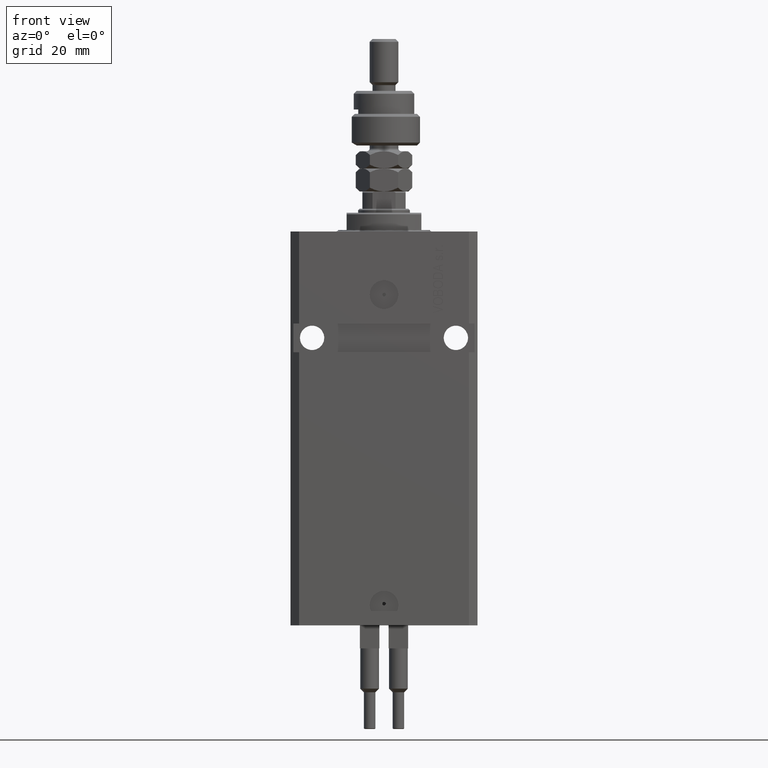
[diagram: clean part render]
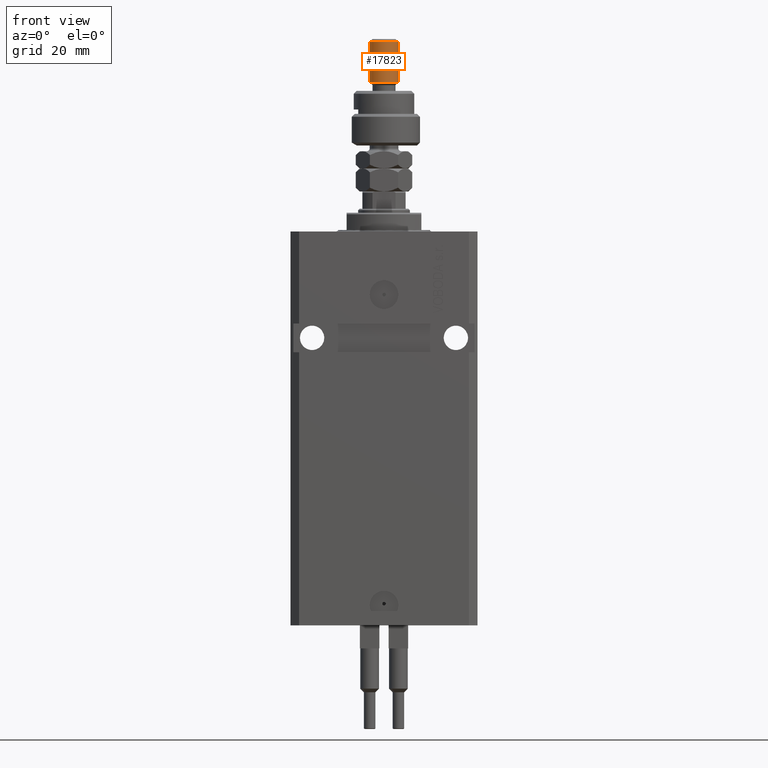
[diagram: same view with one face highlighted and labeled with its STEP entity id]
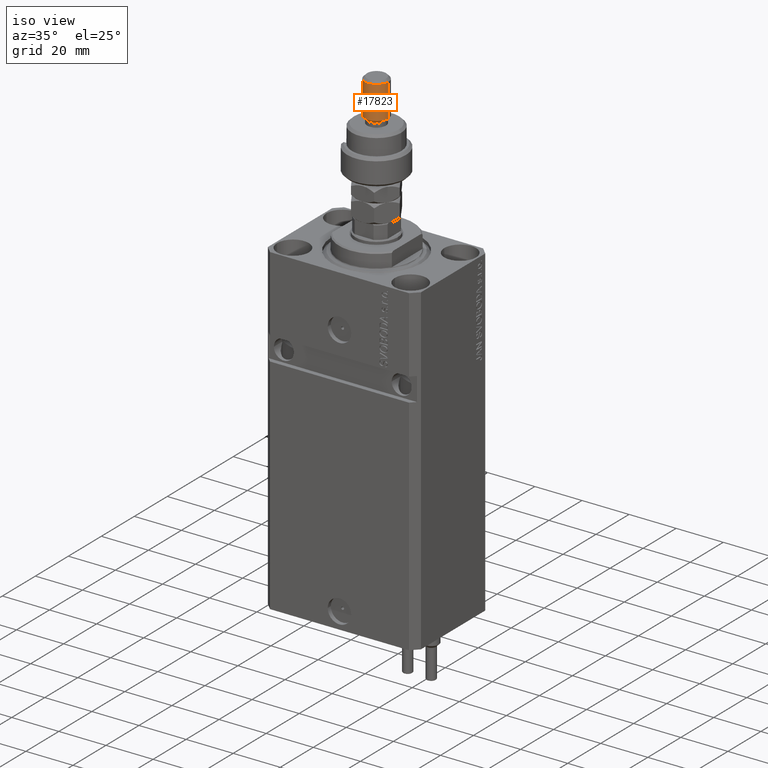
[diagram: same view with one face highlighted and labeled with its STEP entity id]
A machine part, front view. The second image highlights one B-rep face of the part: STEP entity #17823.
A second angle (iso view) of the same face is appended — the face is thin or edge-on in the first view.
In plain terms, the highlighted cylindrical surface (edge-blend (fillet) strip) has radius 5 mm, axis along (-0, -0, -1).
Its self-contained STEP definition (entity closure, byte-faithful):
#3998 = VERTEX_POINT ( 'NONE', #31909 ) ;
#7361 = AXIS2_PLACEMENT_3D ( 'NONE', #15082, #34890, #30777 ) ;
#7624 = CARTESIAN_POINT ( 'NONE',  ( -5.000000000000000888, 0.000000000000000000, 37.00000000000000000 ) ) ;
#7626 = VERTEX_POINT ( 'NONE', #18257 ) ;
#10324 = VECTOR ( 'NONE', #46520, 1000.000000000000000 ) ;
#11212 = LINE ( 'NONE', #7624, #29098 ) ;
#11320 = CARTESIAN_POINT ( 'NONE',  ( 5.000000000000000888, 6.123233995736767268E-16, 37.00000000000000000 ) ) ;
#13411 = FACE_OUTER_BOUND ( 'NONE', #21898, .T. ) ;
#13663 = CARTESIAN_POINT ( 'NONE',  ( 0.000000000000000000, 0.000000000000000000, 37.00000000000000000 ) ) ;
#13670 = ORIENTED_EDGE ( 'NONE', *, *, #37474, .F. ) ;
#15082 = CARTESIAN_POINT ( 'NONE',  ( 0.000000000000000000, 0.000000000000000000, 36.00000000000000711 ) ) ;
#15244 = AXIS2_PLACEMENT_3D ( 'NONE', #20893, #25017, #40442 ) ;
#17823 = ADVANCED_FACE ( 'NONE', ( #13411 ), #28615, .T. ) ;
#18257 = CARTESIAN_POINT ( 'NONE',  ( 5.000000000000000888, 6.123233995736767268E-16, 21.99999999999999289 ) ) ;
#18599 = EDGE_CURVE ( 'NONE', #34035, #3998, #11212, .T. ) ;
#20893 = CARTESIAN_POINT ( 'NONE',  ( 0.000000000000000000, 0.000000000000000000, 21.99999999999999289 ) ) ;
#21005 = CIRCLE ( 'NONE', #15244, 5.000000000000000888 ) ;
#21898 = EDGE_LOOP ( 'NONE', ( #13670, #37303, #24207, #49142 ) ) ;
#24065 = CARTESIAN_POINT ( 'NONE',  ( 5.000000000000000888, 6.123233995736767268E-16, 36.00000000000000711 ) ) ;
#24207 = ORIENTED_EDGE ( 'NONE', *, *, #18599, .T. ) ;
#25017 = DIRECTION ( 'NONE',  ( -0.000000000000000000, -0.000000000000000000, 1.000000000000000000 ) ) ;
#25929 = EDGE_CURVE ( 'NONE', #3998, #7626, #21005, .T. ) ;
#27009 = LINE ( 'NONE', #11320, #10324 ) ;
#28615 = CYLINDRICAL_SURFACE ( 'NONE', #31539, 5.000000000000000888 ) ;
#29098 = VECTOR ( 'NONE', #50783, 1000.000000000000000 ) ;
#30777 = DIRECTION ( 'NONE',  ( 1.000000000000000000, 0.000000000000000000, 0.000000000000000000 ) ) ;
#31539 = AXIS2_PLACEMENT_3D ( 'NONE', #13663, #44277, #36568 ) ;
#31909 = CARTESIAN_POINT ( 'NONE',  ( -5.000000000000000888, 0.000000000000000000, 21.99999999999999289 ) ) ;
#34035 = VERTEX_POINT ( 'NONE', #40479 ) ;
#34890 = DIRECTION ( 'NONE',  ( 0.000000000000000000, 0.000000000000000000, -1.000000000000000000 ) ) ;
#35020 = VERTEX_POINT ( 'NONE', #24065 ) ;
#36568 = DIRECTION ( 'NONE',  ( -1.000000000000000000, 0.000000000000000000, 0.000000000000000000 ) ) ;
#37303 = ORIENTED_EDGE ( 'NONE', *, *, #48305, .T. ) ;
#37474 = EDGE_CURVE ( 'NONE', #35020, #7626, #27009, .T. ) ;
#40209 = CIRCLE ( 'NONE', #7361, 5.000000000000000888 ) ;
#40442 = DIRECTION ( 'NONE',  ( 1.000000000000000000, 0.000000000000000000, 0.000000000000000000 ) ) ;
#40479 = CARTESIAN_POINT ( 'NONE',  ( -5.000000000000000888, 0.000000000000000000, 36.00000000000000711 ) ) ;
#44277 = DIRECTION ( 'NONE',  ( -0.000000000000000000, -0.000000000000000000, -1.000000000000000000 ) ) ;
#46520 = DIRECTION ( 'NONE',  ( -0.000000000000000000, -0.000000000000000000, -1.000000000000000000 ) ) ;
#48305 = EDGE_CURVE ( 'NONE', #35020, #34035, #40209, .T. ) ;
#49142 = ORIENTED_EDGE ( 'NONE', *, *, #25929, .T. ) ;
#50783 = DIRECTION ( 'NONE',  ( -0.000000000000000000, -0.000000000000000000, -1.000000000000000000 ) ) ;